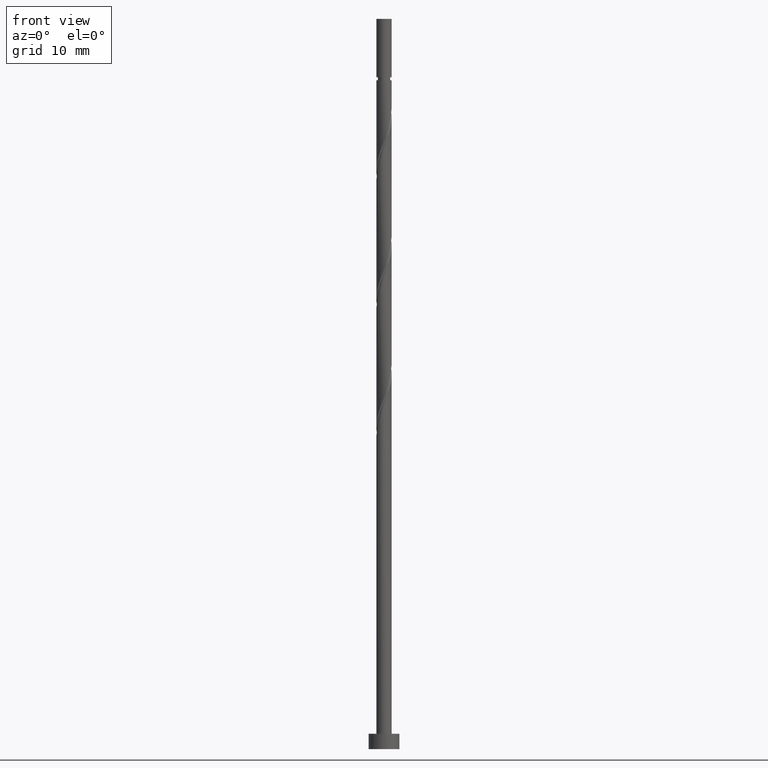
[diagram: clean part render]
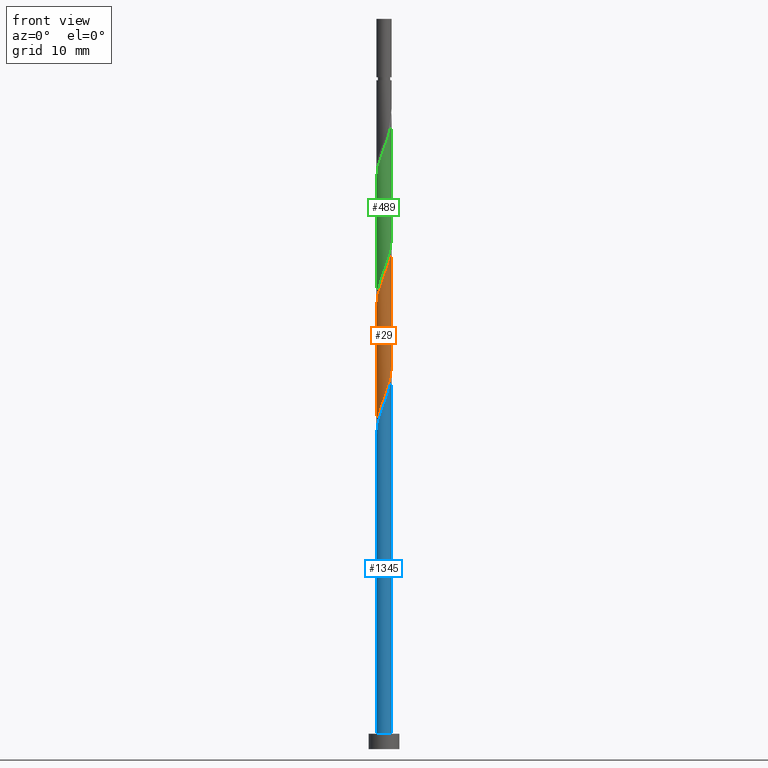
[diagram: same view with three faces highlighted in distinct colors, each labeled with its STEP entity id]
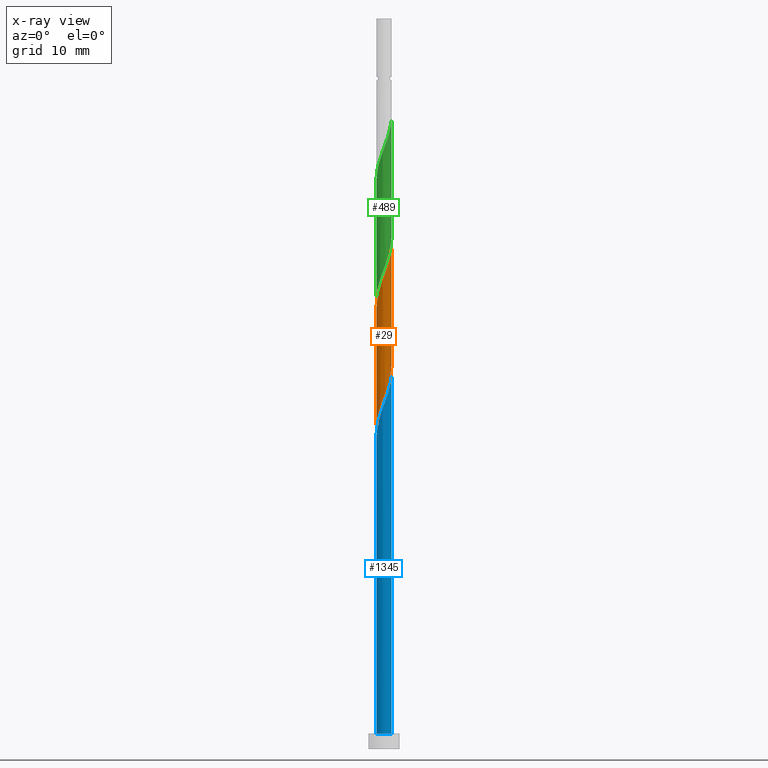
[diagram: x-ray of the same camera — body ghosted, the three highlighted faces saturated]
A machine part, front view with three faces highlighted in distinct colors.
The next image is the same camera in x-ray (body ghosted, the three faces saturated) — at least one of them is partly hidden behind the body in this view.
Their STEP definitions:

[orange] entity #29 — the highlighted cylindrical surface (edge-blend (fillet) strip) has radius 1 mm, axis along (-0, -0, -1).
#5 = CARTESIAN_POINT ( 'NONE',  ( -0.9996671490029763740, -0.02579905432887370093, 57.38863081824607804 ) ) ;
#23 = CARTESIAN_POINT ( 'NONE',  ( 0.9305560469009561686, -0.3661494825560581146, 49.05529748491276365 ) ) ;
#28 = CARTESIAN_POINT ( 'NONE',  ( -1.000000000000148992, -0.1630543718200193060, 42.14570151522886476 ) ) ;
#29 = ADVANCED_FACE ( 'NONE', ( #839 ), #53, .T. ) ;
#53 = CYLINDRICAL_SURFACE ( 'NONE', #529, 1.000000000000000000 ) ;
#62 = VERTEX_POINT ( 'NONE', #1392 ) ;
#93 = CARTESIAN_POINT ( 'NONE',  ( 1.000000000000001554, -1.577928341515621780E-15, 65.65407222622029337 ) ) ;
#95 =( BOUNDED_CURVE ( )  B_SPLINE_CURVE ( 2, ( #484, #240, #5, #1020, #124, #588, #823, #494, #950, #604, #965, #1442, #851, #282, #627, #1429, #1316, #293, #762, #366, #822 ),
 .UNSPECIFIED., .F., .T. ) 
 B_SPLINE_CURVE_WITH_KNOTS ( ( 3, 2, 2, 2, 2, 2, 2, 2, 2, 2, 3 ),
 ( 0.3045248053855291182, 0.3055555555555555802, 0.3194444444444444198, 0.3333333333333333703, 0.3472222222222222099, 0.3611111111111111605, 0.3750000000000000000, 0.3888888888888888395, 0.4027777777777777901, 0.4166666666666666297, 0.4295248053855290626 ),
 .UNSPECIFIED. ) 
 CURVE ( )  GEOMETRIC_REPRESENTATION_ITEM ( )  RATIONAL_B_SPLINE_CURVE ( ( 0.9071930855141403516, 0.9080659294509879631, 0.9090909090909280454, 0.8952797754656623974, 0.9090909090909280454, 0.8952797754656623974, 0.9090909090909280454, 0.8952797754656623974, 0.9090909090909280454, 0.8952797754656623974, 0.9090909090909280454, 0.8952797754656623974, 0.9090909090909280454, 0.8952797754656623974, 0.9090909090909280454, 0.8952797754656623974, 0.9090909090909280454, 0.8952797754656623974, 0.9090909090909280454, 0.8963047551056024798, 0.9071930855141402406 ) ) 
 REPRESENTATION_ITEM ( '' )  );
#124 = CARTESIAN_POINT ( 'NONE',  ( -0.9305560469009558355, -0.3661494825560580035, 58.31455674417201607 ) ) ;
#163 = CARTESIAN_POINT ( 'NONE',  ( 0.4774909380590686703, -0.8786366735297782560, 47.20344563306093022 ) ) ;
#206 = CARTESIAN_POINT ( 'NONE',  ( 1.000000000000001998, -0.01290167433201744839, 50.01509796226545745 ) ) ;
#240 = CARTESIAN_POINT ( 'NONE',  ( -1.000000000000001776, -0.01290167433201772594, 57.35475626681932937 ) ) ;
#270 = DIRECTION ( 'NONE',  ( -0.000000000000000000, -0.000000000000000000, -1.000000000000000000 ) ) ;
#282 = CARTESIAN_POINT ( 'NONE',  ( 0.3717979285156163827, -0.9449113738744305824, 62.48122341083868037 ) ) ;
#288 = DIRECTION ( 'NONE',  ( -0.000000000000000000, -0.000000000000000000, -1.000000000000000000 ) ) ;
#293 = CARTESIAN_POINT ( 'NONE',  ( 0.8921910604809037970, -0.4848570054394663043, 64.33307526269054222 ) ) ;
#296 = ORIENTED_EDGE ( 'NONE', *, *, #517, .F. ) ;
#335 = CARTESIAN_POINT ( 'NONE',  ( -1.000000000000001776, -1.217525773571817085E-15, 57.32073889288697899 ) ) ;
#366 = CARTESIAN_POINT ( 'NONE',  ( 1.000000000000000888, -0.1630543718204613413, 65.22415271385467861 ) ) ;
#408 = CARTESIAN_POINT ( 'NONE',  ( -0.7823727769265516052, -0.6228104349834227005, 43.49974192935720652 ) ) ;
#427 = CARTESIAN_POINT ( 'NONE',  ( 1.000000000000000000, 1.224646799147352961E-16, 95.00000000000000000 ) ) ;
#436 = CARTESIAN_POINT ( 'NONE',  ( 0.9996671490029767071, -0.02579905432887409297, 49.98122341083869458 ) ) ;
#476 = CARTESIAN_POINT ( 'NONE',  ( 0.6324182898423037491, -0.7944421381061700371, 47.66640859602386371 ) ) ;
#484 = CARTESIAN_POINT ( 'NONE',  ( -1.000000000000001776, -1.217525773571816888E-15, 57.32073889288697899 ) ) ;
#487 = DIRECTION ( 'NONE',  ( -1.000000000000000000, 0.000000000000000000, 0.000000000000000000 ) ) ;
#490 = VERTEX_POINT ( 'NONE', #335 ) ;
#494 = CARTESIAN_POINT ( 'NONE',  ( -0.6324182898423036381, -0.7944421381061698151, 59.70344563306090180 ) ) ;
#496 = CARTESIAN_POINT ( 'NONE',  ( -1.000000000000001776, 9.054264865865223989E-13, 41.71578200286209892 ) ) ;
#512 = CARTESIAN_POINT ( 'NONE',  ( 1.000000000000002220, 1.133494086745553801E-15, 50.04911533619782205 ) ) ;
#517 = EDGE_CURVE ( 'NONE', #1330, #62, #773, .T. ) ;
#521 = CARTESIAN_POINT ( 'NONE',  ( -0.1989974874213207845, -0.9800000000000025357, 45.35159378120904705 ) ) ;
#526 = CARTESIAN_POINT ( 'NONE',  ( -0.02619704632702489142, -1.015088626125574711, 45.81455674417200896 ) ) ;
#529 = AXIS2_PLACEMENT_3D ( 'NONE', #601, #1178, #487 ) ;
#562 = EDGE_CURVE ( 'NONE', #490, #834, #95, .T. ) ;
#583 = CARTESIAN_POINT ( 'NONE',  ( 0.7492061519980914852, -0.6623368793961394996, 48.12937155898684694 ) ) ;
#588 = CARTESIAN_POINT ( 'NONE',  ( -0.8659940141538795544, -0.5302316206861081849, 58.77751970713498508 ) ) ;
#601 = CARTESIAN_POINT ( 'NONE',  ( 0.000000000000000000, 0.000000000000000000, 95.00000000000000000 ) ) ;
#604 = CARTESIAN_POINT ( 'NONE',  ( -0.3225635862758335914, -0.9628312089533862528, 60.62937155898683272 ) ) ;
#627 = CARTESIAN_POINT ( 'NONE',  ( 0.5221762109439075372, -0.8528376192009042844, 62.94418637380165649 ) ) ;
#657 = CARTESIAN_POINT ( 'NONE',  ( 0.9951180796480328938, -0.2020673444260079332, 49.51826044787572556 ) ) ;
#675 = CARTESIAN_POINT ( 'NONE',  ( -0.9482036394194125473, -0.3176631206038630917, 42.57381600343127559 ) ) ;
#745 = CARTESIAN_POINT ( 'NONE',  ( -0.6725544933721987473, -0.7607638645273786526, 43.96270489232018264 ) ) ;
#762 = CARTESIAN_POINT ( 'NONE',  ( 0.9482036394194119922, -0.3176631206038637023, 64.79603822565348992 ) ) ;
#766 = LINE ( 'NONE', #427, #1438 ) ;
#767 = ORIENTED_EDGE ( 'NONE', *, *, #1332, .T. ) ;
#773 =( BOUNDED_CURVE ( )  B_SPLINE_CURVE ( 2, ( #1473, #206, #436, #657, #23, #814, #583, #476, #163, #962, #853, #526, #521, #1425, #860, #745, #408, #1268, #675, #28, #496 ),
 .UNSPECIFIED., .F., .T. ) 
 B_SPLINE_CURVE_WITH_KNOTS ( ( 3, 2, 2, 2, 2, 2, 2, 2, 2, 2, 3 ),
 ( 0.8045248053855290626, 0.8055555555555555802, 0.8194444444444444198, 0.8333333333333333703, 0.8472222222222222099, 0.8611111111111111605, 0.8750000000000000000, 0.8888888888888888395, 0.9027777777777777901, 0.9166666666666666297, 0.9295248053855652559 ),
 .UNSPECIFIED. ) 
 CURVE ( )  GEOMETRIC_REPRESENTATION_ITEM ( )  RATIONAL_B_SPLINE_CURVE ( ( 0.9071930855141306926, 0.9080659294509783042, 0.9090909090909183865, 0.8952797754656529605, 0.9090909090909183865, 0.8952797754656529605, 0.9090909090909183865, 0.8952797754656529605, 0.9090909090909183865, 0.8952797754656529605, 0.9090909090909183865, 0.8952797754656529605, 0.9090909090909183865, 0.8952797754656529605, 0.9090909090909183865, 0.8952797754656529605, 0.9090909090909183865, 0.8952797754656529605, 0.9090909090909183865, 0.8963047551055570716, 0.9071930855141919769 ) ) 
 REPRESENTATION_ITEM ( '' )  );
#785 = EDGE_CURVE ( 'NONE', #834, #1330, #766, .T. ) ;
#814 = CARTESIAN_POINT ( 'NONE',  ( 0.8659940141538792213, -0.5302316206861090730, 48.59233452194979463 ) ) ;
#822 = CARTESIAN_POINT ( 'NONE',  ( 1.000000000000001554, -1.577928341515621780E-15, 65.65407222622029337 ) ) ;
#823 = CARTESIAN_POINT ( 'NONE',  ( -0.7492061519980917073, -0.6623368793961389445, 59.24048267009795410 ) ) ;
#834 = VERTEX_POINT ( 'NONE', #93 ) ;
#839 = FACE_OUTER_BOUND ( 'NONE', #1338, .T. ) ;
#851 = CARTESIAN_POINT ( 'NONE',  ( 0.1989974874213205069, -0.9800000000000025357, 62.01826044787571846 ) ) ;
#853 = CARTESIAN_POINT ( 'NONE',  ( 0.1481832699744045356, -0.9889599175394805375, 46.27751970713498508 ) ) ;
#860 = CARTESIAN_POINT ( 'NONE',  ( -0.5221762109439079813, -0.8528376192009045065, 44.42566785528313034 ) ) ;
#950 = CARTESIAN_POINT ( 'NONE',  ( -0.4774909380590687258, -0.8786366735297779229, 60.16640859602386371 ) ) ;
#962 = CARTESIAN_POINT ( 'NONE',  ( 0.3225635862758333139, -0.9628312089533865858, 46.74048267009793278 ) ) ;
#963 = VECTOR ( 'NONE', #270, 1000.000000000000000 ) ;
#965 = CARTESIAN_POINT ( 'NONE',  ( -0.1481832699744047299, -0.9889599175394803154, 61.09233452194980174 ) ) ;
#1020 = CARTESIAN_POINT ( 'NONE',  ( -0.9951180796480326718, -0.2020673444260077389, 57.85159378120904705 ) ) ;
#1053 = CARTESIAN_POINT ( 'NONE',  ( -1.000000000000000000, 0.000000000000000000, 95.00000000000000000 ) ) ;
#1133 = ORIENTED_EDGE ( 'NONE', *, *, #785, .F. ) ;
#1178 = DIRECTION ( 'NONE',  ( -0.000000000000000000, -0.000000000000000000, -1.000000000000000000 ) ) ;
#1268 = CARTESIAN_POINT ( 'NONE',  ( -0.8921910604809041301, -0.4848570054394663043, 43.03677896639423750 ) ) ;
#1308 = LINE ( 'NONE', #1053, #963 ) ;
#1316 = CARTESIAN_POINT ( 'NONE',  ( 0.7823727769265514942, -0.6228104349834223674, 63.87011229972758031 ) ) ;
#1330 = VERTEX_POINT ( 'NONE', #512 ) ;
#1332 = EDGE_CURVE ( 'NONE', #490, #62, #1308, .T. ) ;
#1336 = ORIENTED_EDGE ( 'NONE', *, *, #562, .F. ) ;
#1338 = EDGE_LOOP ( 'NONE', ( #1133, #1336, #767, #296 ) ) ;
#1392 = CARTESIAN_POINT ( 'NONE',  ( -1.000000000000001776, 9.054264865865223989E-13, 41.71578200286209892 ) ) ;
#1425 = CARTESIAN_POINT ( 'NONE',  ( -0.3717979285156171043, -0.9449113738744301383, 44.88863081824608514 ) ) ;
#1429 = CARTESIAN_POINT ( 'NONE',  ( 0.6725544933721986363, -0.7607638645273789857, 63.40714933676461129 ) ) ;
#1438 = VECTOR ( 'NONE', #288, 1000.000000000000000 ) ;
#1442 = CARTESIAN_POINT ( 'NONE',  ( 0.02619704632702417671, -1.015088626125574489, 61.55529748491276365 ) ) ;
#1473 = CARTESIAN_POINT ( 'NONE',  ( 1.000000000000002220, 1.133494086745553801E-15, 50.04911533619782205 ) ) ;

[blue] entity #1345 — the highlighted cylindrical surface (edge-blend (fillet) strip) has radius 1 mm, axis along (-0, -0, -1).
#34 = EDGE_LOOP ( 'NONE', ( #186, #1043, #72, #694 ) ) ;
#72 = ORIENTED_EDGE ( 'NONE', *, *, #336, .T. ) ;
#120 = EDGE_CURVE ( 'NONE', #463, #1269, #138, .T. ) ;
#138 =( BOUNDED_CURVE ( )  B_SPLINE_CURVE ( 2, ( #960, #1414, #391, #852, #1305, #276, #654, #414, #190, #524, #1435, #1101, #1430, #764, #1230, #1327, #432, #988, #1214, #1454, #894 ),
 .UNSPECIFIED., .F., .T. ) 
 B_SPLINE_CURVE_WITH_KNOTS ( ( 3, 2, 2, 2, 2, 2, 2, 2, 2, 2, 3 ),
 ( 0.05452480538552961775, 0.05555555555555558023, 0.06944444444444441977, 0.08333333333333337034, 0.09722222222222220989, 0.1111111111111111605, 0.1250000000000000000, 0.1388888888888888395, 0.1527777777777777901, 0.1666666666666666297, 0.1795248053855292014 ),
 .UNSPECIFIED. ) 
 CURVE ( )  GEOMETRIC_REPRESENTATION_ITEM ( )  RATIONAL_B_SPLINE_CURVE ( ( 0.9071930855141412398, 0.9080659294509885182, 0.9090909090909280454, 0.8952797754656623974, 0.9090909090909280454, 0.8952797754656623974, 0.9090909090909280454, 0.8952797754656623974, 0.9090909090909280454, 0.8952797754656623974, 0.9090909090909280454, 0.8952797754656623974, 0.9090909090909280454, 0.8952797754656623974, 0.9090909090909280454, 0.8952797754656623974, 0.9090909090909280454, 0.8952797754656623974, 0.9090909090909280454, 0.8963047551056023687, 0.9071930855141404626 ) ) 
 REPRESENTATION_ITEM ( '' )  );
#186 = ORIENTED_EDGE ( 'NONE', *, *, #472, .F. ) ;
#190 = CARTESIAN_POINT ( 'NONE',  ( -0.4774909380590687258, -0.8786366735297779229, 43.49974192935720652 ) ) ;
#248 = VECTOR ( 'NONE', #751, 1000.000000000000000 ) ;
#276 = CARTESIAN_POINT ( 'NONE',  ( -0.8659940141538795544, -0.5302316206861081849, 42.11085304046832078 ) ) ;
#281 = FACE_OUTER_BOUND ( 'NONE', #34, .T. ) ;
#311 = LINE ( 'NONE', #439, #1415 ) ;
#336 = EDGE_CURVE ( 'NONE', #463, #370, #1456, .T. ) ;
#339 = CARTESIAN_POINT ( 'NONE',  ( 1.000000000000000000, 1.224646799147352961E-16, 2.000000000000000000 ) ) ;
#370 = VERTEX_POINT ( 'NONE', #884 ) ;
#383 = CARTESIAN_POINT ( 'NONE',  ( 0.000000000000000000, 0.000000000000000000, 2.000000000000000000 ) ) ;
#391 = CARTESIAN_POINT ( 'NONE',  ( -0.9996671490029763740, -0.02579905432887370093, 40.72196415157941374 ) ) ;
#395 = CARTESIAN_POINT ( 'NONE',  ( 0.000000000000000000, 0.000000000000000000, 95.00000000000000000 ) ) ;
#414 = CARTESIAN_POINT ( 'NONE',  ( -0.6324182898423036381, -0.7944421381061698151, 43.03677896639425171 ) ) ;
#432 = CARTESIAN_POINT ( 'NONE',  ( 0.7823727769265514942, -0.6228104349834223674, 47.20344563306091601 ) ) ;
#439 = CARTESIAN_POINT ( 'NONE',  ( 1.000000000000000000, 1.224646799147352961E-16, 95.00000000000000000 ) ) ;
#463 = VERTEX_POINT ( 'NONE', #892 ) ;
#468 = CIRCLE ( 'NONE', #1030, 1.000000000000000000 ) ;
#472 = EDGE_CURVE ( 'NONE', #1269, #969, #311, .T. ) ;
#524 = CARTESIAN_POINT ( 'NONE',  ( -0.3225635862758335914, -0.9628312089533862528, 43.96270489232018264 ) ) ;
#615 = CARTESIAN_POINT ( 'NONE',  ( 1.000000000000001554, -1.577928341515621780E-15, 48.98740555955362908 ) ) ;
#654 = CARTESIAN_POINT ( 'NONE',  ( -0.7492061519980917073, -0.6623368793961389445, 42.57381600343127559 ) ) ;
#694 = ORIENTED_EDGE ( 'NONE', *, *, #729, .T. ) ;
#700 = DIRECTION ( 'NONE',  ( 1.000000000000000000, 0.000000000000000000, 0.000000000000000000 ) ) ;
#727 = CYLINDRICAL_SURFACE ( 'NONE', #1281, 1.000000000000000000 ) ;
#729 = EDGE_CURVE ( 'NONE', #370, #969, #468, .T. ) ;
#751 = DIRECTION ( 'NONE',  ( -0.000000000000000000, -0.000000000000000000, -1.000000000000000000 ) ) ;
#764 = CARTESIAN_POINT ( 'NONE',  ( 0.3717979285156163827, -0.9449113738744305824, 45.81455674417201607 ) ) ;
#852 = CARTESIAN_POINT ( 'NONE',  ( -0.9951180796480326718, -0.2020673444260077389, 41.18492711454238275 ) ) ;
#857 = DIRECTION ( 'NONE',  ( -0.000000000000000000, -0.000000000000000000, -1.000000000000000000 ) ) ;
#884 = CARTESIAN_POINT ( 'NONE',  ( -1.000000000000000000, 0.000000000000000000, 2.000000000000000000 ) ) ;
#892 = CARTESIAN_POINT ( 'NONE',  ( -1.000000000000001776, -1.217525773571817085E-15, 40.65407222622031469 ) ) ;
#894 = CARTESIAN_POINT ( 'NONE',  ( 1.000000000000001554, -1.577928341515621780E-15, 48.98740555955362908 ) ) ;
#900 = DIRECTION ( 'NONE',  ( -0.000000000000000000, -0.000000000000000000, -1.000000000000000000 ) ) ;
#940 = CARTESIAN_POINT ( 'NONE',  ( -1.000000000000000000, 0.000000000000000000, 95.00000000000000000 ) ) ;
#960 = CARTESIAN_POINT ( 'NONE',  ( -1.000000000000001776, -1.217525773571817085E-15, 40.65407222622031469 ) ) ;
#969 = VERTEX_POINT ( 'NONE', #339 ) ;
#988 = CARTESIAN_POINT ( 'NONE',  ( 0.8921910604809037970, -0.4848570054394663043, 47.66640859602386371 ) ) ;
#1030 = AXIS2_PLACEMENT_3D ( 'NONE', #383, #1270, #700 ) ;
#1043 = ORIENTED_EDGE ( 'NONE', *, *, #120, .F. ) ;
#1101 = CARTESIAN_POINT ( 'NONE',  ( 0.02619704632702417671, -1.015088626125574489, 44.88863081824608514 ) ) ;
#1214 = CARTESIAN_POINT ( 'NONE',  ( 0.9482036394194119922, -0.3176631206038637023, 48.12937155898681851 ) ) ;
#1230 = CARTESIAN_POINT ( 'NONE',  ( 0.5221762109439075372, -0.8528376192009042844, 46.27751970713499219 ) ) ;
#1269 = VERTEX_POINT ( 'NONE', #615 ) ;
#1270 = DIRECTION ( 'NONE',  ( 0.000000000000000000, 0.000000000000000000, 1.000000000000000000 ) ) ;
#1281 = AXIS2_PLACEMENT_3D ( 'NONE', #395, #857, #1286 ) ;
#1286 = DIRECTION ( 'NONE',  ( -1.000000000000000000, 0.000000000000000000, 0.000000000000000000 ) ) ;
#1305 = CARTESIAN_POINT ( 'NONE',  ( -0.9305560469009558355, -0.3661494825560580035, 41.64789007750535887 ) ) ;
#1327 = CARTESIAN_POINT ( 'NONE',  ( 0.6725544933721986363, -0.7607638645273789857, 46.74048267009793278 ) ) ;
#1345 = ADVANCED_FACE ( 'NONE', ( #281 ), #727, .T. ) ;
#1414 = CARTESIAN_POINT ( 'NONE',  ( -1.000000000000001554, -0.01290167433202398309, 40.68808960015266507 ) ) ;
#1415 = VECTOR ( 'NONE', #900, 1000.000000000000000 ) ;
#1430 = CARTESIAN_POINT ( 'NONE',  ( 0.1989974874213205069, -0.9800000000000025357, 45.35159378120906837 ) ) ;
#1435 = CARTESIAN_POINT ( 'NONE',  ( -0.1481832699744047299, -0.9889599175394803154, 44.42566785528313744 ) ) ;
#1454 = CARTESIAN_POINT ( 'NONE',  ( 1.000000000000001332, -0.1630543718204597037, 48.55748604718801431 ) ) ;
#1456 = LINE ( 'NONE', #940, #248 ) ;

[green] entity #489 — the highlighted cylindrical surface (edge-blend (fillet) strip) has radius 1 mm, axis along (-0, -0, -1).
#31 = CARTESIAN_POINT ( 'NONE',  ( 1.000000000000001998, -0.1630543718204573722, 81.89081938052133580 ) ) ;
#44 = EDGE_CURVE ( 'NONE', #290, #880, #1366, .T. ) ;
#49 = CARTESIAN_POINT ( 'NONE',  ( -0.8659940141538795544, -0.5302316206861081849, 75.44418637380167070 ) ) ;
#81 = ORIENTED_EDGE ( 'NONE', *, *, #1067, .F. ) ;
#83 = CARTESIAN_POINT ( 'NONE',  ( 0.9996671490029767071, -0.02579905432887409297, 66.64789007750535177 ) ) ;
#90 = CARTESIAN_POINT ( 'NONE',  ( 0.8659940141538792213, -0.5302316206861090730, 65.25900118861645183 ) ) ;
#123 = CYLINDRICAL_SURFACE ( 'NONE', #1390, 1.000000000000000000 ) ;
#129 = EDGE_CURVE ( 'NONE', #777, #162, #298, .T. ) ;
#137 = LINE ( 'NONE', #275, #445 ) ;
#147 = CARTESIAN_POINT ( 'NONE',  ( -0.9951180796480326718, -0.2020673444260077389, 74.51826044787571846 ) ) ;
#162 = VERTEX_POINT ( 'NONE', #355 ) ;
#184 = CARTESIAN_POINT ( 'NONE',  ( 0.9951180796480328938, -0.2020673444260079332, 66.18492711454237565 ) ) ;
#185 = CARTESIAN_POINT ( 'NONE',  ( 1.000000000000001776, -2.969119601195075154E-16, 82.32073889288697899 ) ) ;
#195 = ORIENTED_EDGE ( 'NONE', *, *, #44, .F. ) ;
#202 = CARTESIAN_POINT ( 'NONE',  ( -0.3717979285156171043, -0.9449113738744301383, 61.55529748491276365 ) ) ;
#205 = CARTESIAN_POINT ( 'NONE',  ( -1.000000000000001776, -1.112953007743562896E-15, 73.98740555955365039 ) ) ;
#275 = CARTESIAN_POINT ( 'NONE',  ( -1.000000000000000000, 0.000000000000000000, 95.00000000000000000 ) ) ;
#290 = VERTEX_POINT ( 'NONE', #205 ) ;
#298 =( BOUNDED_CURVE ( )  B_SPLINE_CURVE ( 2, ( #1343, #982, #83, #184, #549, #90, #313, #406, #1317, #886, #781, #1205, #1078, #202, #666, #752, #323, #1109, #996, #1089, #1193 ),
 .UNSPECIFIED., .F., .T. ) 
 B_SPLINE_CURVE_WITH_KNOTS ( ( 3, 2, 2, 2, 2, 2, 2, 2, 2, 2, 3 ),
 ( 0.5545248053855290626, 0.5555555555555555802, 0.5694444444444444198, 0.5833333333333333703, 0.5972222222222222099, 0.6111111111111111605, 0.6250000000000000000, 0.6388888888888888395, 0.6527777777777777901, 0.6666666666666666297, 0.6795248053855291737 ),
 .UNSPECIFIED. ) 
 CURVE ( )  GEOMETRIC_REPRESENTATION_ITEM ( )  RATIONAL_B_SPLINE_CURVE ( ( 0.9071930855141306926, 0.9080659294509783042, 0.9090909090909183865, 0.8952797754656529605, 0.9090909090909183865, 0.8952797754656529605, 0.9090909090909183865, 0.8952797754656529605, 0.9090909090909183865, 0.8952797754656529605, 0.9090909090909183865, 0.8952797754656529605, 0.9090909090909183865, 0.8952797754656529605, 0.9090909090909183865, 0.8952797754656529605, 0.9090909090909183865, 0.8952797754656529605, 0.9090909090909183865, 0.8963047551055929318, 0.9071930855141306926 ) ) 
 REPRESENTATION_ITEM ( '' )  );
#313 = CARTESIAN_POINT ( 'NONE',  ( 0.7492061519980914852, -0.6623368793961394996, 64.79603822565348992 ) ) ;
#323 = CARTESIAN_POINT ( 'NONE',  ( -0.7823727769265516052, -0.6228104349834227005, 60.16640859602387081 ) ) ;
#343 = CARTESIAN_POINT ( 'NONE',  ( 0.000000000000000000, 0.000000000000000000, 95.00000000000000000 ) ) ;
#355 = CARTESIAN_POINT ( 'NONE',  ( -1.000000000000002220, -1.492029283871000850E-15, 58.38244866953114354 ) ) ;
#369 = CARTESIAN_POINT ( 'NONE',  ( 1.000000000000001776, -2.969119601195075154E-16, 82.32073889288696478 ) ) ;
#378 = CARTESIAN_POINT ( 'NONE',  ( 0.5221762109439075372, -0.8528376192009042844, 79.61085304046832789 ) ) ;
#385 = CARTESIAN_POINT ( 'NONE',  ( -0.7492061519980917073, -0.6623368793961389445, 75.90714933676460419 ) ) ;
#396 = CARTESIAN_POINT ( 'NONE',  ( -0.6324182898423036381, -0.7944421381061698151, 76.37011229972758031 ) ) ;
#406 = CARTESIAN_POINT ( 'NONE',  ( 0.6324182898423037491, -0.7944421381061700371, 64.33307526269052801 ) ) ;
#445 = VECTOR ( 'NONE', #951, 1000.000000000000000 ) ;
#447 = DIRECTION ( 'NONE',  ( -1.000000000000000000, 0.000000000000000000, 0.000000000000000000 ) ) ;
#453 = DIRECTION ( 'NONE',  ( -0.000000000000000000, -0.000000000000000000, -1.000000000000000000 ) ) ;
#481 = DIRECTION ( 'NONE',  ( -0.000000000000000000, -0.000000000000000000, -1.000000000000000000 ) ) ;
#489 = ADVANCED_FACE ( 'NONE', ( #683 ), #123, .T. ) ;
#540 = ORIENTED_EDGE ( 'NONE', *, *, #129, .F. ) ;
#549 = CARTESIAN_POINT ( 'NONE',  ( 0.9305560469009561686, -0.3661494825560581146, 65.72196415157942795 ) ) ;
#595 = LINE ( 'NONE', #1041, #826 ) ;
#623 = EDGE_LOOP ( 'NONE', ( #81, #195, #861, #540 ) ) ;
#629 = CARTESIAN_POINT ( 'NONE',  ( 0.6725544933721986363, -0.7607638645273789857, 80.07381600343130401 ) ) ;
#666 = CARTESIAN_POINT ( 'NONE',  ( -0.5221762109439079813, -0.8528376192009045065, 61.09233452194980885 ) ) ;
#683 = FACE_OUTER_BOUND ( 'NONE', #623, .T. ) ;
#730 = CARTESIAN_POINT ( 'NONE',  ( 0.3717979285156163827, -0.9449113738744305824, 79.14789007750535177 ) ) ;
#744 = CARTESIAN_POINT ( 'NONE',  ( 0.02619704632702417671, -1.015088626125574489, 78.22196415157941374 ) ) ;
#752 = CARTESIAN_POINT ( 'NONE',  ( -0.6725544933721987473, -0.7607638645273786526, 60.62937155898682562 ) ) ;
#777 = VERTEX_POINT ( 'NONE', #1081 ) ;
#781 = CARTESIAN_POINT ( 'NONE',  ( 0.1481832699744045356, -0.9889599175394805375, 62.94418637380164228 ) ) ;
#826 = VECTOR ( 'NONE', #453, 1000.000000000000000 ) ;
#861 = ORIENTED_EDGE ( 'NONE', *, *, #1217, .T. ) ;
#880 = VERTEX_POINT ( 'NONE', #185 ) ;
#886 = CARTESIAN_POINT ( 'NONE',  ( 0.3225635862758333139, -0.9628312089533865858, 63.40714933676461129 ) ) ;
#942 = CARTESIAN_POINT ( 'NONE',  ( 0.8921910604809037970, -0.4848570054394663043, 80.99974192935718520 ) ) ;
#951 = DIRECTION ( 'NONE',  ( -0.000000000000000000, -0.000000000000000000, -1.000000000000000000 ) ) ;
#952 = CARTESIAN_POINT ( 'NONE',  ( -0.4774909380590687258, -0.8786366735297779229, 76.83307526269052801 ) ) ;
#982 = CARTESIAN_POINT ( 'NONE',  ( 1.000000000000001998, -0.01290167433201744839, 66.68176462893211465 ) ) ;
#996 = CARTESIAN_POINT ( 'NONE',  ( -0.9482036394194125473, -0.3176631206038630917, 59.24048267009794699 ) ) ;
#1041 = CARTESIAN_POINT ( 'NONE',  ( 1.000000000000000000, 1.224646799147352961E-16, 95.00000000000000000 ) ) ;
#1045 = CARTESIAN_POINT ( 'NONE',  ( -0.1481832699744047299, -0.9889599175394803154, 77.75900118861645183 ) ) ;
#1060 = CARTESIAN_POINT ( 'NONE',  ( -0.9305560469009558355, -0.3661494825560580035, 74.98122341083868037 ) ) ;
#1067 = EDGE_CURVE ( 'NONE', #880, #777, #595, .T. ) ;
#1069 = CARTESIAN_POINT ( 'NONE',  ( 0.7823727769265514942, -0.6228104349834223674, 80.53677896639426592 ) ) ;
#1078 = CARTESIAN_POINT ( 'NONE',  ( -0.1989974874213207845, -0.9800000000000025357, 62.01826044787573267 ) ) ;
#1081 = CARTESIAN_POINT ( 'NONE',  ( 1.000000000000002220, 1.133494086745553801E-15, 66.71578200286447213 ) ) ;
#1089 = CARTESIAN_POINT ( 'NONE',  ( -1.000000000000001332, -0.1630543718204593429, 58.81236818189675830 ) ) ;
#1109 = CARTESIAN_POINT ( 'NONE',  ( -0.8921910604809041301, -0.4848570054394663043, 59.70344563306088759 ) ) ;
#1162 = CARTESIAN_POINT ( 'NONE',  ( -1.000000000000001776, -1.112953007743563093E-15, 73.98740555955363618 ) ) ;
#1169 = CARTESIAN_POINT ( 'NONE',  ( -0.9996671490029763740, -0.02579905432887370093, 74.05529748491275654 ) ) ;
#1193 = CARTESIAN_POINT ( 'NONE',  ( -1.000000000000002220, -1.492029283871000850E-15, 58.38244866953115064 ) ) ;
#1205 = CARTESIAN_POINT ( 'NONE',  ( -0.02619704632702489142, -1.015088626125574711, 62.48122341083868037 ) ) ;
#1217 = EDGE_CURVE ( 'NONE', #290, #162, #137, .T. ) ;
#1309 = CARTESIAN_POINT ( 'NONE',  ( -0.3225635862758335914, -0.9628312089533862528, 77.29603822565351834 ) ) ;
#1317 = CARTESIAN_POINT ( 'NONE',  ( 0.4774909380590686703, -0.8786366735297782560, 63.87011229972756610 ) ) ;
#1343 = CARTESIAN_POINT ( 'NONE',  ( 1.000000000000002220, 1.133494086745553801E-15, 66.71578200286447213 ) ) ;
#1366 =( BOUNDED_CURVE ( )  B_SPLINE_CURVE ( 2, ( #1162, #1422, #1169, #147, #1060, #49, #385, #396, #952, #1309, #1045, #744, #1400, #730, #378, #629, #1069, #942, #1407, #31, #369 ),
 .UNSPECIFIED., .F., .T. ) 
 B_SPLINE_CURVE_WITH_KNOTS ( ( 3, 2, 2, 2, 2, 2, 2, 2, 2, 2, 3 ),
 ( 0.5545248053855295067, 0.5555555555555555802, 0.5694444444444444198, 0.5833333333333332593, 0.5972222222222222099, 0.6111111111111111605, 0.6250000000000000000, 0.6388888888888888395, 0.6527777777777777901, 0.6666666666666667407, 0.6795248053855293957 ),
 .UNSPECIFIED. ) 
 CURVE ( )  GEOMETRIC_REPRESENTATION_ITEM ( )  RATIONAL_B_SPLINE_CURVE ( ( 0.9071930855141410177, 0.9080659294509884072, 0.9090909090909280454, 0.8952797754656623974, 0.9090909090909280454, 0.8952797754656623974, 0.9090909090909280454, 0.8952797754656623974, 0.9090909090909280454, 0.8952797754656623974, 0.9090909090909280454, 0.8952797754656623974, 0.9090909090909280454, 0.8952797754656623974, 0.9090909090909280454, 0.8952797754656623974, 0.9090909090909280454, 0.8952797754656623974, 0.9090909090909280454, 0.8963047551056022577, 0.9071930855141407957 ) ) 
 REPRESENTATION_ITEM ( '' )  );
#1390 = AXIS2_PLACEMENT_3D ( 'NONE', #343, #481, #447 ) ;
#1400 = CARTESIAN_POINT ( 'NONE',  ( 0.1989974874213205069, -0.9800000000000025357, 78.68492711454238986 ) ) ;
#1407 = CARTESIAN_POINT ( 'NONE',  ( 0.9482036394194119922, -0.3176631206038637023, 81.46270489232016132 ) ) ;
#1422 = CARTESIAN_POINT ( 'NONE',  ( -1.000000000000001554, -0.01290167433202249643, 74.02142293348600788 ) ) ;